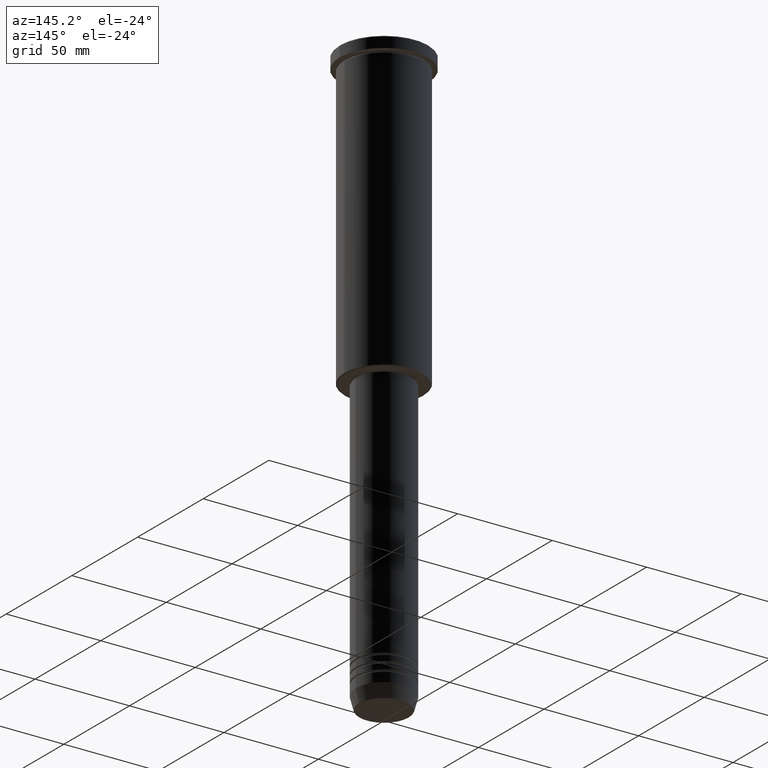
[diagram: clean part render]
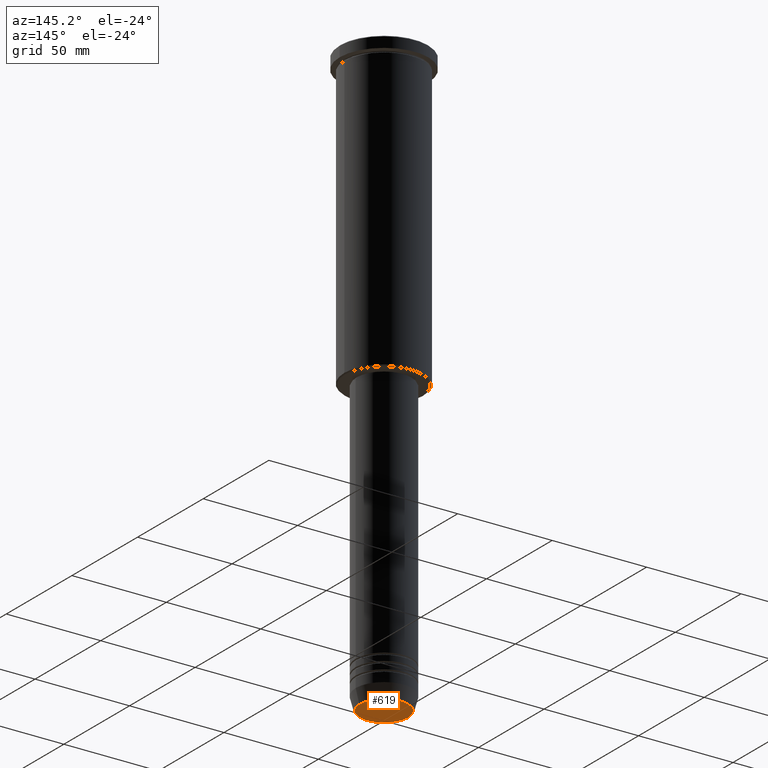
[diagram: same view with one face highlighted and labeled with its STEP entity id]
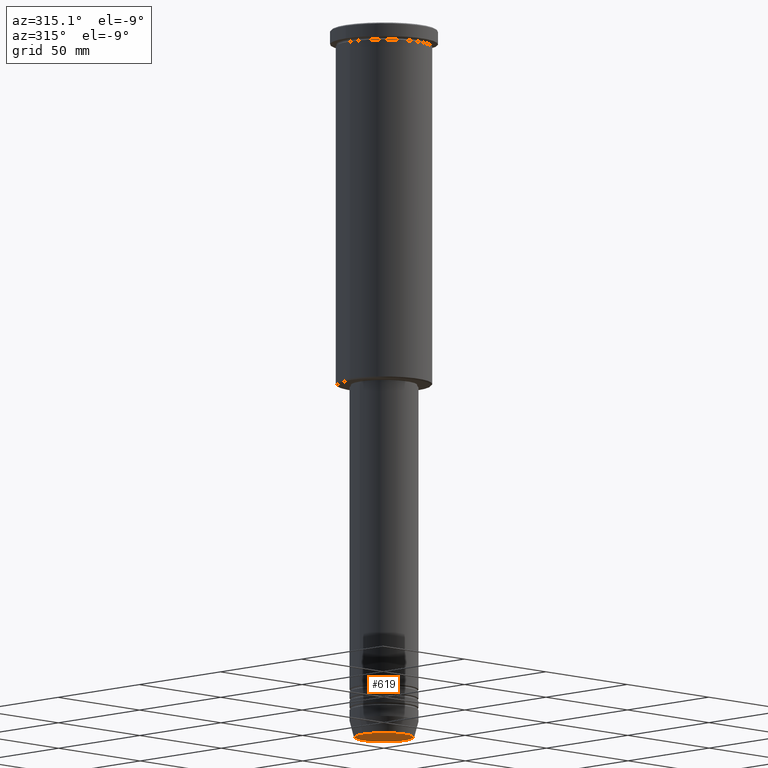
[diagram: same view with one face highlighted and labeled with its STEP entity id]
A machine part, auxiliary view. The second image highlights one B-rep face of the part: STEP entity #619.
A second angle (auxiliary view) of the same face is appended — the face is thin or edge-on in the first view.
In plain terms, the highlighted planar face has unit normal (0, -0, 1).
Its self-contained STEP definition (entity closure, byte-faithful):
#41 = AXIS2_PLACEMENT_3D ( 'NONE', #1012, #191, #487 ) ;
#54 = CIRCLE ( 'NONE', #41, 12.74069215899265828 ) ;
#76 = DIRECTION ( 'NONE',  ( 1.000000000000000000, 0.000000000000000000, 0.000000000000000000 ) ) ;
#94 = EDGE_LOOP ( 'NONE', ( #541, #653 ) ) ;
#100 = PLANE ( 'NONE',  #656 ) ;
#127 = CARTESIAN_POINT ( 'NONE',  ( -12.74069215899265828, 1.589857736427680246E-15, -311.0000000000000000 ) ) ;
#191 = DIRECTION ( 'NONE',  ( 0.000000000000000000, 0.000000000000000000, -1.000000000000000000 ) ) ;
#227 = DIRECTION ( 'NONE',  ( 1.000000000000000000, 0.000000000000000000, 0.000000000000000000 ) ) ;
#312 = VERTEX_POINT ( 'NONE', #127 ) ;
#316 = CARTESIAN_POINT ( 'NONE',  ( 0.000000000000000000, 0.000000000000000000, -311.0000000000000000 ) ) ;
#474 = CARTESIAN_POINT ( 'NONE',  ( 0.000000000000000000, 0.000000000000000000, -311.0000000000000000 ) ) ;
#487 = DIRECTION ( 'NONE',  ( 1.000000000000000000, 0.000000000000000000, 0.000000000000000000 ) ) ;
#494 = EDGE_CURVE ( 'NONE', #601, #312, #973, .T. ) ;
#541 = ORIENTED_EDGE ( 'NONE', *, *, #494, .T. ) ;
#557 = FACE_OUTER_BOUND ( 'NONE', #94, .T. ) ;
#601 = VERTEX_POINT ( 'NONE', #647 ) ;
#606 = EDGE_CURVE ( 'NONE', #312, #601, #54, .T. ) ;
#608 = AXIS2_PLACEMENT_3D ( 'NONE', #316, #1055, #227 ) ;
#619 = ADVANCED_FACE ( 'NONE', ( #557 ), #100, .F. ) ;
#647 = CARTESIAN_POINT ( 'NONE',  ( 12.74069215899265828, 0.000000000000000000, -311.0000000000000000 ) ) ;
#653 = ORIENTED_EDGE ( 'NONE', *, *, #606, .T. ) ;
#656 = AXIS2_PLACEMENT_3D ( 'NONE', #474, #914, #76 ) ;
#914 = DIRECTION ( 'NONE',  ( 0.000000000000000000, -0.000000000000000000, 1.000000000000000000 ) ) ;
#973 = CIRCLE ( 'NONE', #608, 12.74069215899265828 ) ;
#1012 = CARTESIAN_POINT ( 'NONE',  ( 0.000000000000000000, 0.000000000000000000, -311.0000000000000000 ) ) ;
#1055 = DIRECTION ( 'NONE',  ( 0.000000000000000000, 0.000000000000000000, -1.000000000000000000 ) ) ;